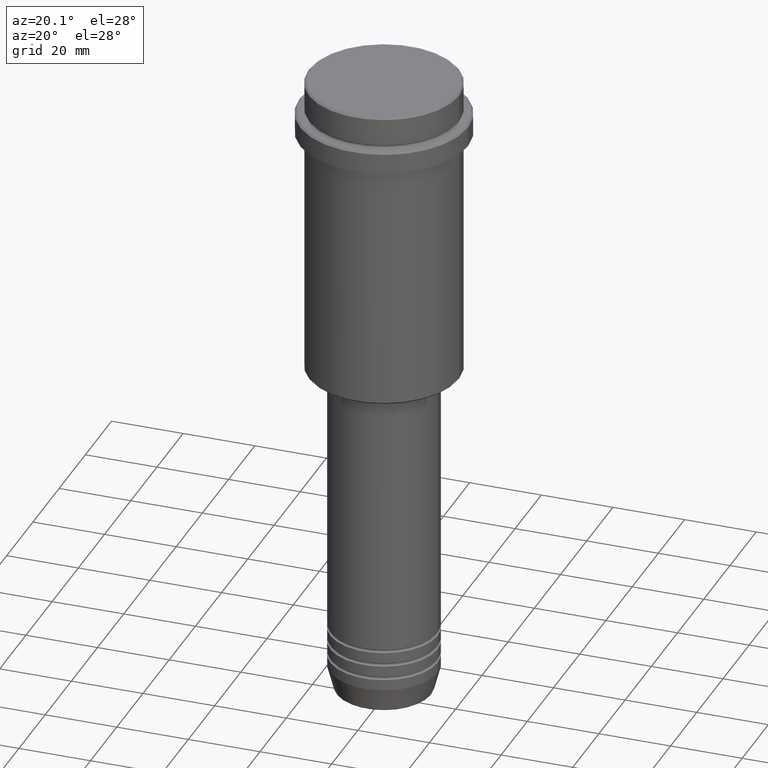
[diagram: clean part render]
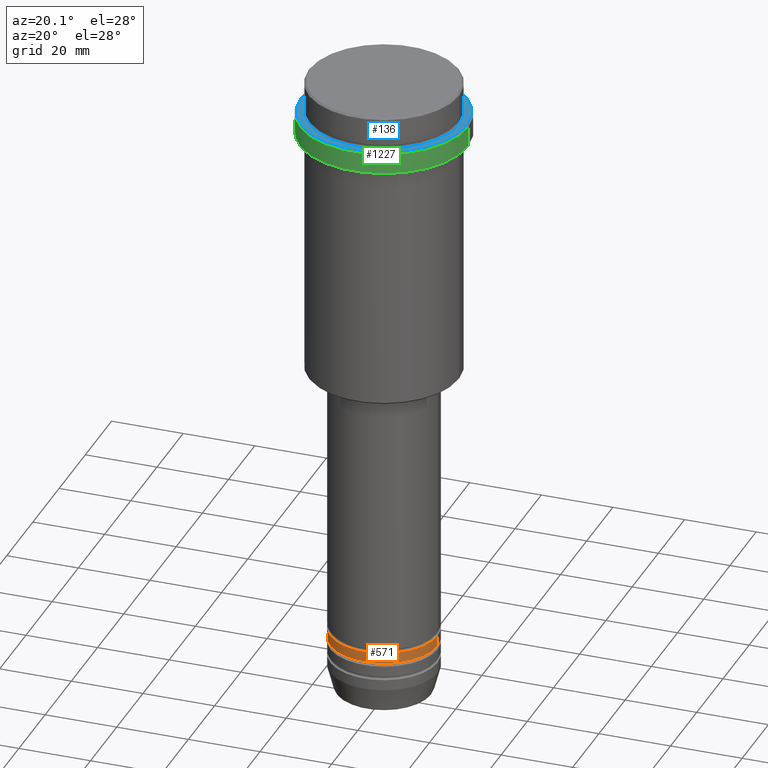
[diagram: same view with three faces highlighted in distinct colors, each labeled with its STEP entity id]
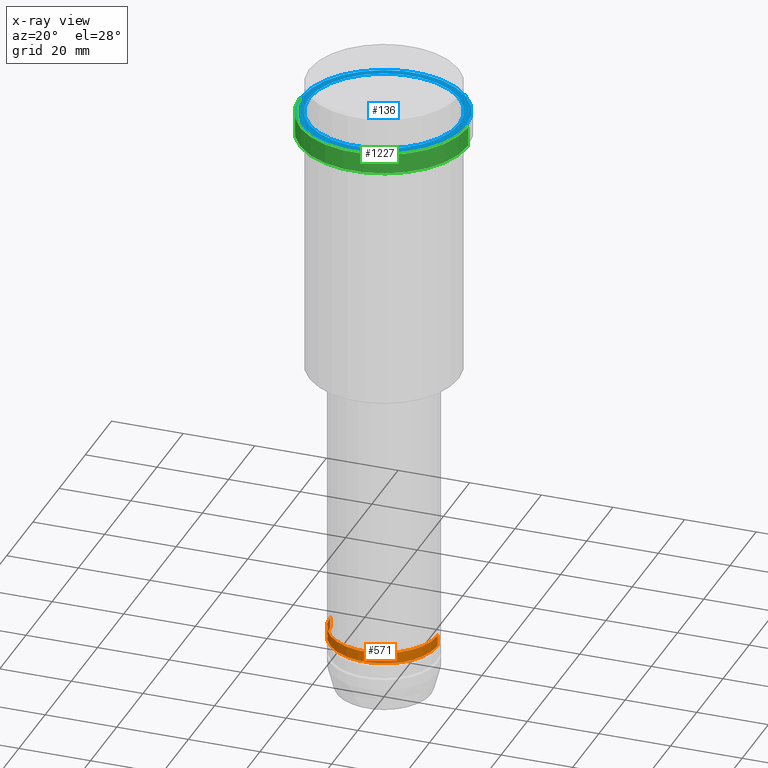
[diagram: x-ray of the same camera — body ghosted, the three highlighted faces saturated]
A machine part, auxiliary view with three faces highlighted in distinct colors.
The next image is the same camera in x-ray (body ghosted, the three faces saturated) — at least one of them is partly hidden behind the body in this view.
Their STEP definitions:

[orange] entity #571 — the highlighted cylindrical surface (partial cylindrical patch) has radius 15 mm, axis along (-0, -0, 1).
#83 = ORIENTED_EDGE ( 'NONE', *, *, #475, .T. ) ;
#89 = CARTESIAN_POINT ( 'NONE',  ( 15.00000000000000000, 0.000000000000000000, -161.9999999999998579 ) ) ;
#106 = CARTESIAN_POINT ( 'NONE',  ( 0.000000000000000000, 0.000000000000000000, 0.000000000000000000 ) ) ;
#220 = CARTESIAN_POINT ( 'NONE',  ( -15.00000000000000000, 1.836970198721029589E-15, 0.000000000000000000 ) ) ;
#229 = VERTEX_POINT ( 'NONE', #1230 ) ;
#238 = DIRECTION ( 'NONE',  ( -0.000000000000000000, -0.000000000000000000, 1.000000000000000000 ) ) ;
#315 = LINE ( 'NONE', #761, #637 ) ;
#317 = CYLINDRICAL_SURFACE ( 'NONE', #707, 15.00000000000000000 ) ;
#421 = ORIENTED_EDGE ( 'NONE', *, *, #1309, .F. ) ;
#426 = CARTESIAN_POINT ( 'NONE',  ( 0.000000000000000000, 0.000000000000000000, -161.9999999999998579 ) ) ;
#436 = CARTESIAN_POINT ( 'NONE',  ( -15.00000000000000000, 1.836970198721029589E-15, -164.9999999999998579 ) ) ;
#453 = VERTEX_POINT ( 'NONE', #89 ) ;
#475 = EDGE_CURVE ( 'NONE', #495, #539, #1101, .T. ) ;
#495 = VERTEX_POINT ( 'NONE', #436 ) ;
#539 = VERTEX_POINT ( 'NONE', #1179 ) ;
#542 = DIRECTION ( 'NONE',  ( -0.000000000000000000, -0.000000000000000000, 1.000000000000000000 ) ) ;
#550 = DIRECTION ( 'NONE',  ( -0.000000000000000000, -0.000000000000000000, 1.000000000000000000 ) ) ;
#571 = ADVANCED_FACE ( 'NONE', ( #1297 ), #317, .T. ) ;
#637 = VECTOR ( 'NONE', #238, 1000.000000000000000 ) ;
#644 = CARTESIAN_POINT ( 'NONE',  ( 0.000000000000000000, 0.000000000000000000, -164.9999999999998579 ) ) ;
#668 = LINE ( 'NONE', #220, #802 ) ;
#707 = AXIS2_PLACEMENT_3D ( 'NONE', #106, #550, #1414 ) ;
#761 = CARTESIAN_POINT ( 'NONE',  ( 15.00000000000000000, 0.000000000000000000, 0.000000000000000000 ) ) ;
#774 = DIRECTION ( 'NONE',  ( 1.000000000000000000, 0.000000000000000000, 0.000000000000000000 ) ) ;
#802 = VECTOR ( 'NONE', #1300, 1000.000000000000000 ) ;
#872 = DIRECTION ( 'NONE',  ( -0.000000000000000000, -0.000000000000000000, 1.000000000000000000 ) ) ;
#958 = ORIENTED_EDGE ( 'NONE', *, *, #997, .F. ) ;
#997 = EDGE_CURVE ( 'NONE', #229, #453, #1027, .T. ) ;
#1006 = EDGE_CURVE ( 'NONE', #539, #453, #315, .T. ) ;
#1019 = AXIS2_PLACEMENT_3D ( 'NONE', #644, #542, #774 ) ;
#1027 = CIRCLE ( 'NONE', #1336, 15.00000000000000000 ) ;
#1076 = ORIENTED_EDGE ( 'NONE', *, *, #1006, .T. ) ;
#1101 = CIRCLE ( 'NONE', #1019, 15.00000000000000000 ) ;
#1179 = CARTESIAN_POINT ( 'NONE',  ( 15.00000000000000000, 0.000000000000000000, -164.9999999999998579 ) ) ;
#1230 = CARTESIAN_POINT ( 'NONE',  ( -15.00000000000000000, 1.836970198721029589E-15, -161.9999999999998579 ) ) ;
#1294 = DIRECTION ( 'NONE',  ( 1.000000000000000000, 0.000000000000000000, 0.000000000000000000 ) ) ;
#1297 = FACE_OUTER_BOUND ( 'NONE', #1324, .T. ) ;
#1300 = DIRECTION ( 'NONE',  ( -0.000000000000000000, -0.000000000000000000, 1.000000000000000000 ) ) ;
#1309 = EDGE_CURVE ( 'NONE', #495, #229, #668, .T. ) ;
#1324 = EDGE_LOOP ( 'NONE', ( #421, #83, #1076, #958 ) ) ;
#1336 = AXIS2_PLACEMENT_3D ( 'NONE', #426, #872, #1294 ) ;
#1414 = DIRECTION ( 'NONE',  ( 1.000000000000000000, 0.000000000000000000, 0.000000000000000000 ) ) ;

[blue] entity #136 — the highlighted planar face has unit normal (0, -0, 1).
#9 = CARTESIAN_POINT ( 'NONE',  ( 20.99999999999999289, 0.000000000000000000, -9.000000000000000000 ) ) ;
#136 = ADVANCED_FACE ( 'NONE', ( #250, #598 ), #1110, .T. ) ;
#176 = CARTESIAN_POINT ( 'NONE',  ( -20.99999999999999289, 2.571758278209440872E-15, -9.000000000000000000 ) ) ;
#178 = EDGE_LOOP ( 'NONE', ( #441, #624 ) ) ;
#190 = EDGE_LOOP ( 'NONE', ( #534, #1043 ) ) ;
#191 = EDGE_CURVE ( 'NONE', #459, #685, #605, .T. ) ;
#235 = DIRECTION ( 'NONE',  ( -0.000000000000000000, -0.000000000000000000, 1.000000000000000000 ) ) ;
#250 = FACE_OUTER_BOUND ( 'NONE', #190, .T. ) ;
#257 = EDGE_CURVE ( 'NONE', #653, #812, #697, .T. ) ;
#372 = DIRECTION ( 'NONE',  ( 1.000000000000000000, 0.000000000000000000, 0.000000000000000000 ) ) ;
#441 = ORIENTED_EDGE ( 'NONE', *, *, #257, .T. ) ;
#459 = VERTEX_POINT ( 'NONE', #1091 ) ;
#460 = CARTESIAN_POINT ( 'NONE',  ( 0.000000000000000000, 0.000000000000000000, -9.000000000000000000 ) ) ;
#534 = ORIENTED_EDGE ( 'NONE', *, *, #1380, .T. ) ;
#569 = AXIS2_PLACEMENT_3D ( 'NONE', #607, #1252, #623 ) ;
#598 = FACE_BOUND ( 'NONE', #178, .T. ) ;
#605 = CIRCLE ( 'NONE', #1161, 23.00000000000005329 ) ;
#607 = CARTESIAN_POINT ( 'NONE',  ( 0.000000000000000000, 0.000000000000000000, -9.000000000000000000 ) ) ;
#623 = DIRECTION ( 'NONE',  ( 1.000000000000000000, 0.000000000000000000, 0.000000000000000000 ) ) ;
#624 = ORIENTED_EDGE ( 'NONE', *, *, #754, .T. ) ;
#653 = VERTEX_POINT ( 'NONE', #9 ) ;
#659 = AXIS2_PLACEMENT_3D ( 'NONE', #1197, #235, #1188 ) ;
#685 = VERTEX_POINT ( 'NONE', #924 ) ;
#697 = CIRCLE ( 'NONE', #1059, 20.99999999999999289 ) ;
#703 = CARTESIAN_POINT ( 'NONE',  ( 0.000000000000000000, 0.000000000000000000, -9.000000000000000000 ) ) ;
#754 = EDGE_CURVE ( 'NONE', #812, #653, #1026, .T. ) ;
#810 = DIRECTION ( 'NONE',  ( -0.000000000000000000, -0.000000000000000000, 1.000000000000000000 ) ) ;
#812 = VERTEX_POINT ( 'NONE', #176 ) ;
#920 = CIRCLE ( 'NONE', #659, 23.00000000000005329 ) ;
#924 = CARTESIAN_POINT ( 'NONE',  ( -23.00000000000005329, 0.000000000000000000, -9.000000000000000000 ) ) ;
#1026 = CIRCLE ( 'NONE', #569, 20.99999999999999289 ) ;
#1037 = DIRECTION ( 'NONE',  ( 1.000000000000000000, 0.000000000000000000, 0.000000000000000000 ) ) ;
#1038 = AXIS2_PLACEMENT_3D ( 'NONE', #1342, #1124, #372 ) ;
#1043 = ORIENTED_EDGE ( 'NONE', *, *, #191, .T. ) ;
#1057 = DIRECTION ( 'NONE',  ( 0.000000000000000000, 0.000000000000000000, -1.000000000000000000 ) ) ;
#1059 = AXIS2_PLACEMENT_3D ( 'NONE', #703, #1057, #1143 ) ;
#1091 = CARTESIAN_POINT ( 'NONE',  ( 23.00000000000005329, 2.847303808017599689E-15, -9.000000000000000000 ) ) ;
#1110 = PLANE ( 'NONE',  #1038 ) ;
#1124 = DIRECTION ( 'NONE',  ( 0.000000000000000000, -0.000000000000000000, 1.000000000000000000 ) ) ;
#1143 = DIRECTION ( 'NONE',  ( 1.000000000000000000, 0.000000000000000000, 0.000000000000000000 ) ) ;
#1161 = AXIS2_PLACEMENT_3D ( 'NONE', #460, #810, #1037 ) ;
#1188 = DIRECTION ( 'NONE',  ( 1.000000000000000000, 0.000000000000000000, 0.000000000000000000 ) ) ;
#1197 = CARTESIAN_POINT ( 'NONE',  ( 0.000000000000000000, 0.000000000000000000, -9.000000000000000000 ) ) ;
#1252 = DIRECTION ( 'NONE',  ( 0.000000000000000000, 0.000000000000000000, -1.000000000000000000 ) ) ;
#1342 = CARTESIAN_POINT ( 'NONE',  ( 0.000000000000000000, 20.49999999999999645, -9.000000000000000000 ) ) ;
#1380 = EDGE_CURVE ( 'NONE', #685, #459, #920, .T. ) ;

[green] entity #1227 — the highlighted cylindrical surface (partial cylindrical patch) has radius 23.5 mm, axis along (-0, -0, 1).
#63 = VERTEX_POINT ( 'NONE', #473 ) ;
#84 = CARTESIAN_POINT ( 'NONE',  ( -23.50000000000000000, 2.877919977996280320E-15, -9.499999999999971578 ) ) ;
#102 = VECTOR ( 'NONE', #207, 1000.000000000000000 ) ;
#147 = CARTESIAN_POINT ( 'NONE',  ( 0.000000000000000000, 0.000000000000000000, -9.499999999999971578 ) ) ;
#193 = AXIS2_PLACEMENT_3D ( 'NONE', #147, #458, #1321 ) ;
#207 = DIRECTION ( 'NONE',  ( -0.000000000000000000, -0.000000000000000000, 1.000000000000000000 ) ) ;
#308 = FACE_OUTER_BOUND ( 'NONE', #397, .T. ) ;
#342 = CARTESIAN_POINT ( 'NONE',  ( -23.50000000000000000, 2.877919977996280320E-15, 0.000000000000000000 ) ) ;
#385 = CARTESIAN_POINT ( 'NONE',  ( 0.000000000000000000, 0.000000000000000000, 0.000000000000000000 ) ) ;
#397 = EDGE_LOOP ( 'NONE', ( #1313, #427, #822, #845 ) ) ;
#411 = VERTEX_POINT ( 'NONE', #1272 ) ;
#427 = ORIENTED_EDGE ( 'NONE', *, *, #1013, .T. ) ;
#448 = VECTOR ( 'NONE', #854, 1000.000000000000000 ) ;
#458 = DIRECTION ( 'NONE',  ( 0.000000000000000000, 0.000000000000000000, -1.000000000000000000 ) ) ;
#466 = CARTESIAN_POINT ( 'NONE',  ( -23.50000000000000711, 2.877919977996281109E-15, -15.00000000000000000 ) ) ;
#473 = CARTESIAN_POINT ( 'NONE',  ( 23.50000000000000355, 0.000000000000000000, -15.00000000000000000 ) ) ;
#508 = CARTESIAN_POINT ( 'NONE',  ( 23.50000000000000000, 0.000000000000000000, 0.000000000000000000 ) ) ;
#520 = AXIS2_PLACEMENT_3D ( 'NONE', #1207, #999, #1014 ) ;
#544 = VERTEX_POINT ( 'NONE', #84 ) ;
#632 = VERTEX_POINT ( 'NONE', #466 ) ;
#671 = EDGE_CURVE ( 'NONE', #411, #544, #1001, .T. ) ;
#822 = ORIENTED_EDGE ( 'NONE', *, *, #1201, .T. ) ;
#845 = ORIENTED_EDGE ( 'NONE', *, *, #671, .T. ) ;
#854 = DIRECTION ( 'NONE',  ( -0.000000000000000000, -0.000000000000000000, 1.000000000000000000 ) ) ;
#952 = DIRECTION ( 'NONE',  ( 1.000000000000000000, 0.000000000000000000, 0.000000000000000000 ) ) ;
#999 = DIRECTION ( 'NONE',  ( -0.000000000000000000, -0.000000000000000000, 1.000000000000000000 ) ) ;
#1001 = CIRCLE ( 'NONE', #193, 23.50000000000000000 ) ;
#1013 = EDGE_CURVE ( 'NONE', #632, #63, #1219, .T. ) ;
#1014 = DIRECTION ( 'NONE',  ( 1.000000000000000000, 0.000000000000000000, 0.000000000000000000 ) ) ;
#1077 = DIRECTION ( 'NONE',  ( -0.000000000000000000, -0.000000000000000000, 1.000000000000000000 ) ) ;
#1111 = LINE ( 'NONE', #342, #102 ) ;
#1146 = CYLINDRICAL_SURFACE ( 'NONE', #1381, 23.50000000000000000 ) ;
#1201 = EDGE_CURVE ( 'NONE', #63, #411, #1265, .T. ) ;
#1207 = CARTESIAN_POINT ( 'NONE',  ( 0.000000000000000000, 0.000000000000000000, -15.00000000000000000 ) ) ;
#1219 = CIRCLE ( 'NONE', #520, 23.50000000000000355 ) ;
#1227 = ADVANCED_FACE ( 'NONE', ( #308 ), #1146, .T. ) ;
#1265 = LINE ( 'NONE', #508, #448 ) ;
#1272 = CARTESIAN_POINT ( 'NONE',  ( 23.50000000000000000, 0.000000000000000000, -9.499999999999971578 ) ) ;
#1313 = ORIENTED_EDGE ( 'NONE', *, *, #1415, .F. ) ;
#1321 = DIRECTION ( 'NONE',  ( 1.000000000000000000, 0.000000000000000000, 0.000000000000000000 ) ) ;
#1381 = AXIS2_PLACEMENT_3D ( 'NONE', #385, #1077, #952 ) ;
#1415 = EDGE_CURVE ( 'NONE', #632, #544, #1111, .T. ) ;